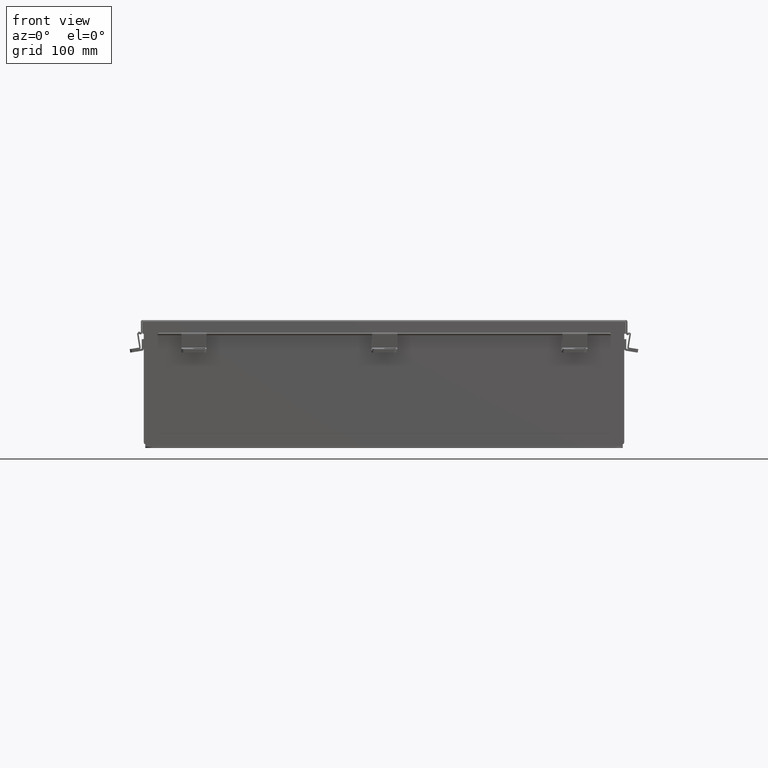
[diagram: clean part render]
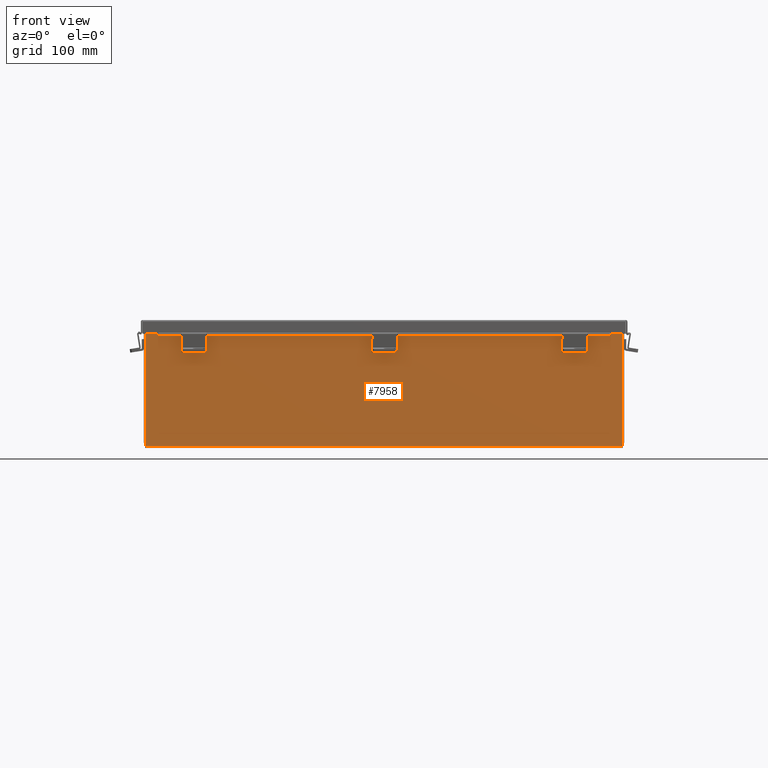
[diagram: same view with one face highlighted and labeled with its STEP entity id]
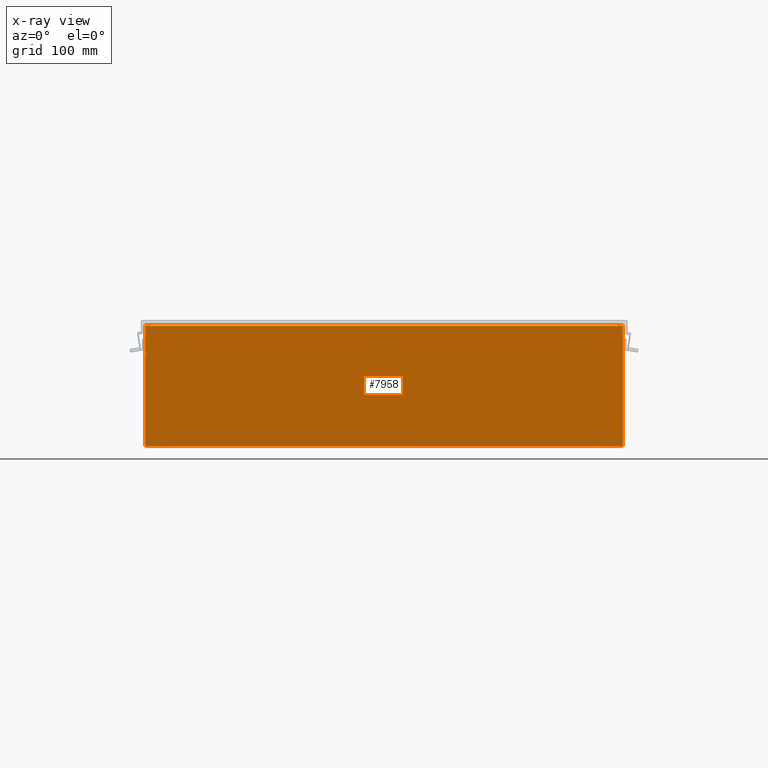
[diagram: x-ray of the same camera — body ghosted, the highlighted face saturated]
A machine part, front view. The second image highlights one B-rep face of the part: STEP entity #7958.
The next image is the same camera in x-ray: the body ghosted, the highlighted face saturated — about 0% of this face is hidden behind the body in this view.
In plain terms, the highlighted planar face has unit normal (-0, 1, -0).
Its self-contained STEP definition (entity closure, byte-faithful):
#36 = VERTEX_POINT ( 'NONE', #7339 ) ;
#56 = ORIENTED_EDGE ( 'NONE', *, *, #2325, .T. ) ;
#100 = VERTEX_POINT ( 'NONE', #2107 ) ;
#467 = AXIS2_PLACEMENT_3D ( 'NONE', #3636, #8114, #6860 ) ;
#576 = CARTESIAN_POINT ( 'NONE',  ( 11.92530000000000500, 2.185478394931410600E-015, -3.099300000000000400 ) ) ;
#639 = EDGE_CURVE ( 'NONE', #36, #100, #7185, .T. ) ;
#688 = EDGE_CURVE ( 'NONE', #8640, #5739, #6561, .T. ) ;
#823 = VECTOR ( 'NONE', #2978, 39.37007874015748100 ) ;
#880 = ORIENTED_EDGE ( 'NONE', *, *, #4503, .F. ) ;
#921 = DIRECTION ( 'NONE',  ( 0.0000000000000000000, 0.0000000000000000000, -1.000000000000000000 ) ) ;
#1148 = CARTESIAN_POINT ( 'NONE',  ( -11.92530000000001600, 0.0000000000000000000, 2.925299999999999100 ) ) ;
#1171 = VERTEX_POINT ( 'NONE', #9376 ) ;
#1209 = ORIENTED_EDGE ( 'NONE', *, *, #5744, .F. ) ;
#1287 = LINE ( 'NONE', #4682, #5472 ) ;
#1375 = EDGE_CURVE ( 'NONE', #2189, #6911, #3564, .T. ) ;
#1410 = ORIENTED_EDGE ( 'NONE', *, *, #1375, .F. ) ;
#1443 = ORIENTED_EDGE ( 'NONE', *, *, #688, .T. ) ;
#1490 = VECTOR ( 'NONE', #3925, 39.37007874015748100 ) ;
#1586 = CARTESIAN_POINT ( 'NONE',  ( -11.92529999999999500, -1.748382715945128500E-014, -3.099299999999995900 ) ) ;
#1680 = LINE ( 'NONE', #1798, #9466 ) ;
#1695 = CARTESIAN_POINT ( 'NONE',  ( 11.58229999999998000, 1.748382715945128500E-014, 2.874949999999997900 ) ) ;
#1798 = CARTESIAN_POINT ( 'NONE',  ( -11.58229999999999800, 0.0000000000000000000, 4.370956789862821100E-015 ) ) ;
#1811 = VECTOR ( 'NONE', #3572, 39.37007874015748100 ) ;
#1822 = EDGE_CURVE ( 'NONE', #2961, #100, #1287, .T. ) ;
#1842 = DIRECTION ( 'NONE',  ( 7.470954756542614900E-016, 0.0000000000000000000, -1.000000000000000000 ) ) ;
#1881 = ORIENTED_EDGE ( 'NONE', *, *, #6852, .F. ) ;
#2060 = CARTESIAN_POINT ( 'NONE',  ( -11.61964999999999800, 0.0000000000000000000, 4.370956789862821100E-015 ) ) ;
#2107 = CARTESIAN_POINT ( 'NONE',  ( 11.58229999999998000, 1.748382715945128500E-014, 2.912299999999996600 ) ) ;
#2189 = VERTEX_POINT ( 'NONE', #8172 ) ;
#2200 = CARTESIAN_POINT ( 'NONE',  ( 11.92529999999998400, 1.748382715945128500E-014, 2.925300000000000000 ) ) ;
#2325 = EDGE_CURVE ( 'NONE', #5739, #6911, #2336, .T. ) ;
#2336 = LINE ( 'NONE', #5708, #823 ) ;
#2363 = EDGE_CURVE ( 'NONE', #6057, #6943, #8057, .T. ) ;
#2370 = DIRECTION ( 'NONE',  ( 1.000000000000000000, 4.910036603141682400E-031, -0.0000000000000000000 ) ) ;
#2531 = DIRECTION ( 'NONE',  ( 0.0000000000000000000, 0.0000000000000000000, 1.000000000000000000 ) ) ;
#2743 = LINE ( 'NONE', #3880, #1490 ) ;
#2961 = VERTEX_POINT ( 'NONE', #1695 ) ;
#2978 = DIRECTION ( 'NONE',  ( 1.000000000000000000, 4.910036603141682400E-031, 0.0000000000000000000 ) ) ;
#3164 = PLANE ( 'NONE',  #467 ) ;
#3253 = EDGE_LOOP ( 'NONE', ( #1410, #1881, #8970, #9218, #5325, #5212, #880, #8926, #4169, #1209, #1443, #56 ) ) ;
#3487 = DIRECTION ( 'NONE',  ( 0.0000000000000000000, 0.0000000000000000000, 1.000000000000000000 ) ) ;
#3564 = LINE ( 'NONE', #2060, #4504 ) ;
#3572 = DIRECTION ( 'NONE',  ( 1.000000000000000000, 4.910036603141682400E-031, 0.0000000000000000000 ) ) ;
#3636 = CARTESIAN_POINT ( 'NONE',  ( 0.0000000000000000000, 0.0000000000000000000, 0.0000000000000000000 ) ) ;
#3880 = CARTESIAN_POINT ( 'NONE',  ( 11.61964999999999800, 0.0000000000000000000, 0.0000000000000000000 ) ) ;
#3925 = DIRECTION ( 'NONE',  ( 0.0000000000000000000, 0.0000000000000000000, -1.000000000000000000 ) ) ;
#4072 = CARTESIAN_POINT ( 'NONE',  ( -11.61965000000001400, 0.0000000000000000000, 2.925300000000000000 ) ) ;
#4169 = ORIENTED_EDGE ( 'NONE', *, *, #2363, .T. ) ;
#4503 = EDGE_CURVE ( 'NONE', #1171, #5824, #2743, .T. ) ;
#4504 = VECTOR ( 'NONE', #2531, 39.37007874015748100 ) ;
#4682 = CARTESIAN_POINT ( 'NONE',  ( 11.58229999999999800, 0.0000000000000000000, 0.0000000000000000000 ) ) ;
#4700 = LINE ( 'NONE', #7951, #4846 ) ;
#4846 = VECTOR ( 'NONE', #8164, 39.37007874015748100 ) ;
#4993 = CIRCLE ( 'NONE', #9133, 0.01867499999999949400 ) ;
#5072 = CIRCLE ( 'NONE', #7954, 0.01867499999999949400 ) ;
#5212 = ORIENTED_EDGE ( 'NONE', *, *, #8295, .F. ) ;
#5325 = ORIENTED_EDGE ( 'NONE', *, *, #1822, .F. ) ;
#5390 = CARTESIAN_POINT ( 'NONE',  ( 11.61964999999998000, 1.748382715945128500E-014, 2.874949999999997900 ) ) ;
#5472 = VECTOR ( 'NONE', #7972, 39.37007874015748100 ) ;
#5584 = CARTESIAN_POINT ( 'NONE',  ( -11.58230000000001600, 0.0000000000000000000, 2.874949999999996600 ) ) ;
#5708 = CARTESIAN_POINT ( 'NONE',  ( -11.92530000000001600, 0.0000000000000000000, 2.925299999999999100 ) ) ;
#5739 = VERTEX_POINT ( 'NONE', #1148 ) ;
#5744 = EDGE_CURVE ( 'NONE', #8640, #6943, #4700, .T. ) ;
#5824 = VERTEX_POINT ( 'NONE', #5390 ) ;
#5948 = LINE ( 'NONE', #8877, #1811 ) ;
#5970 = DIRECTION ( 'NONE',  ( 4.910036603141682400E-031, 1.000000000000000000, -0.0000000000000000000 ) ) ;
#6057 = VERTEX_POINT ( 'NONE', #2200 ) ;
#6172 = CARTESIAN_POINT ( 'NONE',  ( -11.60097500000001600, 0.0000000000000000000, 2.874949999999996600 ) ) ;
#6545 = DIRECTION ( 'NONE',  ( 0.0000000000000000000, 0.0000000000000000000, -1.000000000000000000 ) ) ;
#6560 = DIRECTION ( 'NONE',  ( 0.0000000000000000000, 0.0000000000000000000, -1.000000000000000000 ) ) ;
#6561 = LINE ( 'NONE', #9432, #9086 ) ;
#6579 = VECTOR ( 'NONE', #2370, 39.37007874015748100 ) ;
#6852 = EDGE_CURVE ( 'NONE', #7189, #2189, #4993, .T. ) ;
#6860 = DIRECTION ( 'NONE',  ( 0.0000000000000000000, 0.0000000000000000000, -1.000000000000000000 ) ) ;
#6911 = VERTEX_POINT ( 'NONE', #4072 ) ;
#6943 = VERTEX_POINT ( 'NONE', #576 ) ;
#7185 = LINE ( 'NONE', #9243, #6579 ) ;
#7189 = VERTEX_POINT ( 'NONE', #5584 ) ;
#7339 = CARTESIAN_POINT ( 'NONE',  ( -11.58230000000001600, 4.370956789862821100E-015, 2.912299999999997900 ) ) ;
#7539 = CARTESIAN_POINT ( 'NONE',  ( 11.60097499999998000, 1.748382715945128500E-014, 2.874949999999997900 ) ) ;
#7624 = EDGE_CURVE ( 'NONE', #36, #7189, #1680, .T. ) ;
#7883 = EDGE_CURVE ( 'NONE', #1171, #6057, #5948, .T. ) ;
#7951 = CARTESIAN_POINT ( 'NONE',  ( -11.92529999999999600, -1.748382715945128500E-014, -3.099299999999995900 ) ) ;
#7954 = AXIS2_PLACEMENT_3D ( 'NONE', #7539, #5970, #6560 ) ;
#7958 = ADVANCED_FACE ( 'NONE', ( #9336 ), #3164, .F. ) ;
#7972 = DIRECTION ( 'NONE',  ( 0.0000000000000000000, 0.0000000000000000000, 1.000000000000000000 ) ) ;
#8057 = LINE ( 'NONE', #8216, #10105 ) ;
#8114 = DIRECTION ( 'NONE',  ( -4.910036603141682400E-031, -1.000000000000000000, -0.0000000000000000000 ) ) ;
#8164 = DIRECTION ( 'NONE',  ( 1.000000000000000000, 8.208677865577687000E-017, -0.0000000000000000000 ) ) ;
#8172 = CARTESIAN_POINT ( 'NONE',  ( -11.61965000000001400, 0.0000000000000000000, 2.874949999999996600 ) ) ;
#8216 = CARTESIAN_POINT ( 'NONE',  ( 11.92529999999998400, 1.748382715945128500E-014, 2.925300000000000000 ) ) ;
#8295 = EDGE_CURVE ( 'NONE', #5824, #2961, #5072, .T. ) ;
#8640 = VERTEX_POINT ( 'NONE', #1586 ) ;
#8877 = CARTESIAN_POINT ( 'NONE',  ( -11.92530000000001600, 0.0000000000000000000, 2.925299999999999100 ) ) ;
#8926 = ORIENTED_EDGE ( 'NONE', *, *, #7883, .T. ) ;
#8955 = DIRECTION ( 'NONE',  ( 4.910036603141682400E-031, 1.000000000000000000, -0.0000000000000000000 ) ) ;
#8970 = ORIENTED_EDGE ( 'NONE', *, *, #7624, .F. ) ;
#9086 = VECTOR ( 'NONE', #3487, 39.37007874015748100 ) ;
#9133 = AXIS2_PLACEMENT_3D ( 'NONE', #6172, #8955, #6545 ) ;
#9218 = ORIENTED_EDGE ( 'NONE', *, *, #639, .T. ) ;
#9243 = CARTESIAN_POINT ( 'NONE',  ( -11.58230000000001600, 4.370956789862821100E-015, 2.912299999999997900 ) ) ;
#9336 = FACE_OUTER_BOUND ( 'NONE', #3253, .T. ) ;
#9376 = CARTESIAN_POINT ( 'NONE',  ( 11.61964999999997700, 1.748382715945128500E-014, 2.925299999999999100 ) ) ;
#9432 = CARTESIAN_POINT ( 'NONE',  ( -11.92530000000001600, 0.0000000000000000000, 2.925299999999999100 ) ) ;
#9466 = VECTOR ( 'NONE', #921, 39.37007874015748100 ) ;
#10105 = VECTOR ( 'NONE', #1842, 39.37007874015748100 ) ;